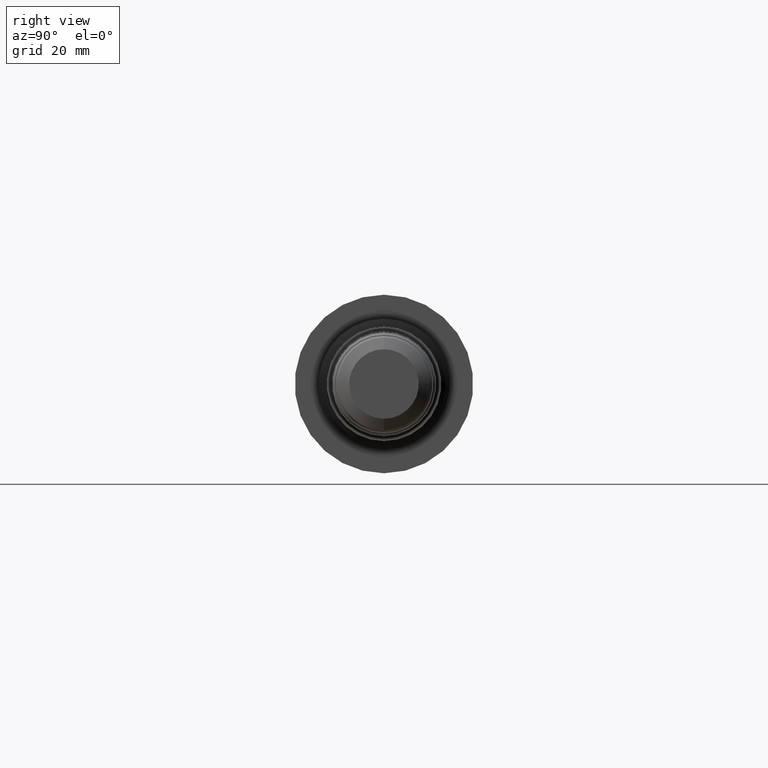
[diagram: clean part render]
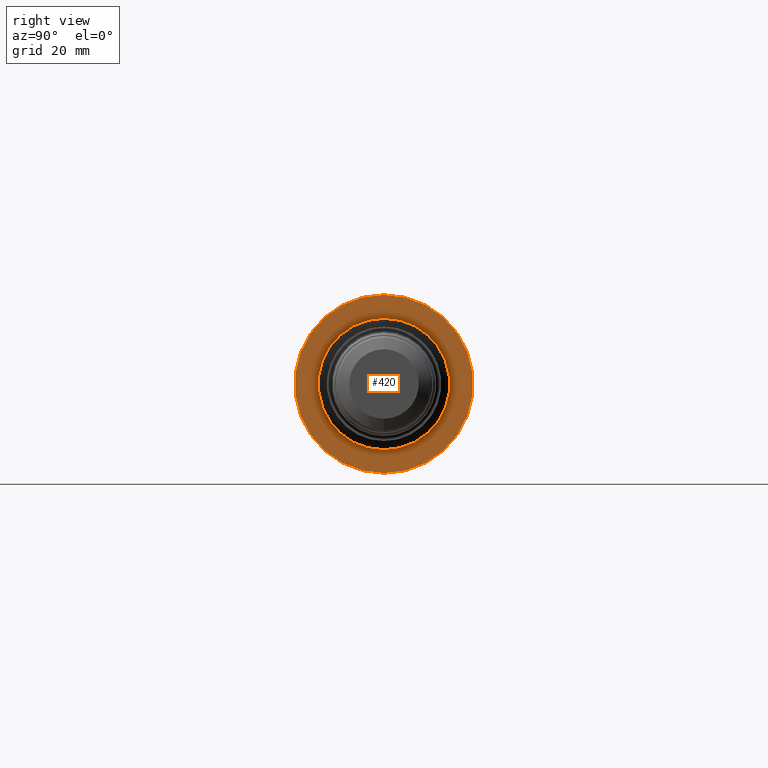
[diagram: same view with one face highlighted and labeled with its STEP entity id]
A machine part, right view. The second image highlights one B-rep face of the part: STEP entity #420.
In plain terms, the highlighted planar face has unit normal (-1, 0, -0).
Its self-contained STEP definition (entity closure, byte-faithful):
#1 = CARTESIAN_POINT ( 'NONE',  ( 3.084000000000000075, 0.0000000000000000000, 0.0000000000000000000 ) ) ;
#11 = DIRECTION ( 'NONE',  ( -1.000000000000000000, -0.0000000000000000000, -0.0000000000000000000 ) ) ;
#50 = VERTEX_POINT ( 'NONE', #597 ) ;
#109 = FACE_BOUND ( 'NONE', #1101, .T. ) ;
#131 = DIRECTION ( 'NONE',  ( 0.0000000000000000000, 0.0000000000000000000, 1.000000000000000000 ) ) ;
#145 = DIRECTION ( 'NONE',  ( 0.0000000000000000000, 0.0000000000000000000, 1.000000000000000000 ) ) ;
#160 = CIRCLE ( 'NONE', #396, 0.6938886159038317736 ) ;
#218 = VERTEX_POINT ( 'NONE', #527 ) ;
#260 = DIRECTION ( 'NONE',  ( 0.0000000000000000000, 0.0000000000000000000, 1.000000000000000000 ) ) ;
#284 = VERTEX_POINT ( 'NONE', #594 ) ;
#293 = CARTESIAN_POINT ( 'NONE',  ( 3.083999999999999631, 0.0000000000000000000, 0.0000000000000000000 ) ) ;
#312 = EDGE_LOOP ( 'NONE', ( #983, #418 ) ) ;
#340 = DIRECTION ( 'NONE',  ( -0.0000000000000000000, 0.0000000000000000000, 1.000000000000000000 ) ) ;
#374 = CIRCLE ( 'NONE', #1050, 0.9425000000000000044 ) ;
#378 = EDGE_CURVE ( 'NONE', #218, #746, #1121, .T. ) ;
#396 = AXIS2_PLACEMENT_3D ( 'NONE', #1095, #673, #131 ) ;
#418 = ORIENTED_EDGE ( 'NONE', *, *, #1049, .F. ) ;
#420 = ADVANCED_FACE ( 'NONE', ( #577, #109 ), #779, .F. ) ;
#487 = DIRECTION ( 'NONE',  ( 0.0000000000000000000, 0.0000000000000000000, 1.000000000000000000 ) ) ;
#527 = CARTESIAN_POINT ( 'NONE',  ( 3.084000000000000075, 8.497684724314145644E-17, -0.6938886159038317736 ) ) ;
#577 = FACE_OUTER_BOUND ( 'NONE', #312, .T. ) ;
#594 = CARTESIAN_POINT ( 'NONE',  ( 3.084000000000000075, 0.0000000000000000000, 0.9425000000000000044 ) ) ;
#597 = CARTESIAN_POINT ( 'NONE',  ( 3.084000000000000075, 1.154229608196380369E-16, -0.9425000000000000044 ) ) ;
#613 = CARTESIAN_POINT ( 'NONE',  ( 3.084000000000000075, 0.9425000000000000044, 0.0000000000000000000 ) ) ;
#673 = DIRECTION ( 'NONE',  ( -1.000000000000000000, -0.0000000000000000000, -0.0000000000000000000 ) ) ;
#692 = DIRECTION ( 'NONE',  ( -1.000000000000000000, -0.0000000000000000000, -0.0000000000000000000 ) ) ;
#700 = DIRECTION ( 'NONE',  ( -1.000000000000000000, -0.0000000000000000000, -0.0000000000000000000 ) ) ;
#742 = AXIS2_PLACEMENT_3D ( 'NONE', #1, #11, #145 ) ;
#746 = VERTEX_POINT ( 'NONE', #1087 ) ;
#779 = PLANE ( 'NONE',  #1097 ) ;
#818 = CIRCLE ( 'NONE', #742, 0.9425000000000000044 ) ;
#839 = EDGE_CURVE ( 'NONE', #746, #218, #160, .T. ) ;
#915 = EDGE_CURVE ( 'NONE', #284, #50, #374, .T. ) ;
#941 = ORIENTED_EDGE ( 'NONE', *, *, #839, .T. ) ;
#948 = DIRECTION ( 'NONE',  ( -1.000000000000000000, 0.0000000000000000000, -0.0000000000000000000 ) ) ;
#983 = ORIENTED_EDGE ( 'NONE', *, *, #915, .F. ) ;
#1015 = AXIS2_PLACEMENT_3D ( 'NONE', #293, #700, #487 ) ;
#1049 = EDGE_CURVE ( 'NONE', #50, #284, #818, .T. ) ;
#1050 = AXIS2_PLACEMENT_3D ( 'NONE', #1116, #692, #260 ) ;
#1052 = ORIENTED_EDGE ( 'NONE', *, *, #378, .T. ) ;
#1087 = CARTESIAN_POINT ( 'NONE',  ( 3.084000000000000075, 0.0000000000000000000, 0.6938886159038317736 ) ) ;
#1095 = CARTESIAN_POINT ( 'NONE',  ( 3.083999999999999631, 0.0000000000000000000, 0.0000000000000000000 ) ) ;
#1097 = AXIS2_PLACEMENT_3D ( 'NONE', #613, #948, #340 ) ;
#1101 = EDGE_LOOP ( 'NONE', ( #941, #1052 ) ) ;
#1116 = CARTESIAN_POINT ( 'NONE',  ( 3.084000000000000075, 0.0000000000000000000, 0.0000000000000000000 ) ) ;
#1121 = CIRCLE ( 'NONE', #1015, 0.6938886159038317736 ) ;